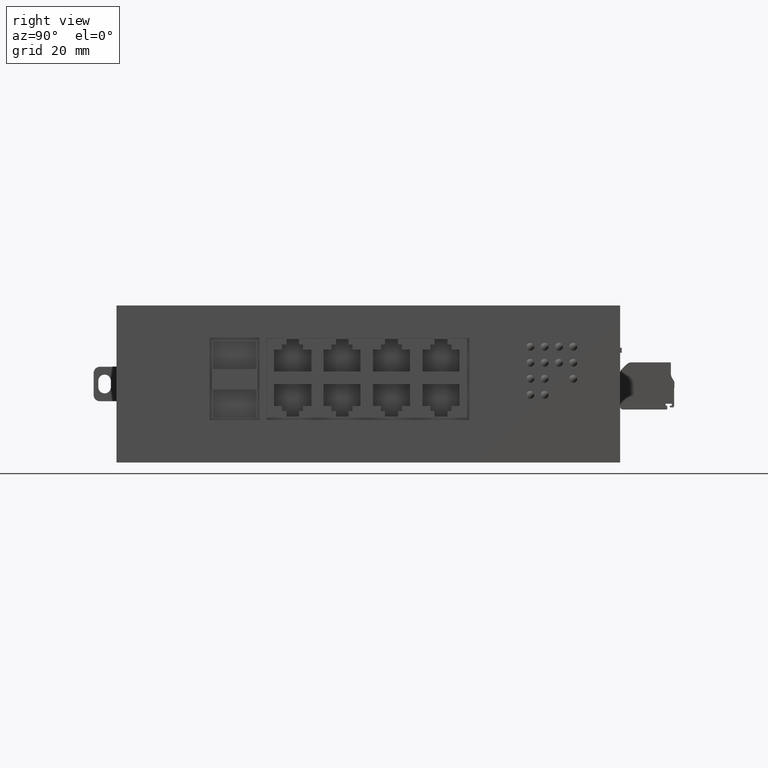
[diagram: clean part render]
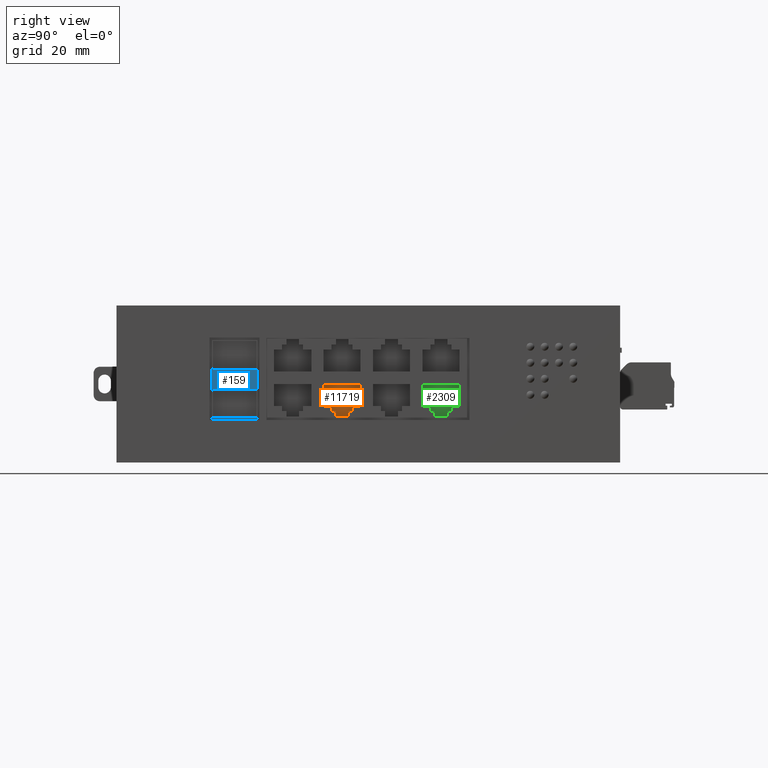
[diagram: same view with three faces highlighted in distinct colors, each labeled with its STEP entity id]
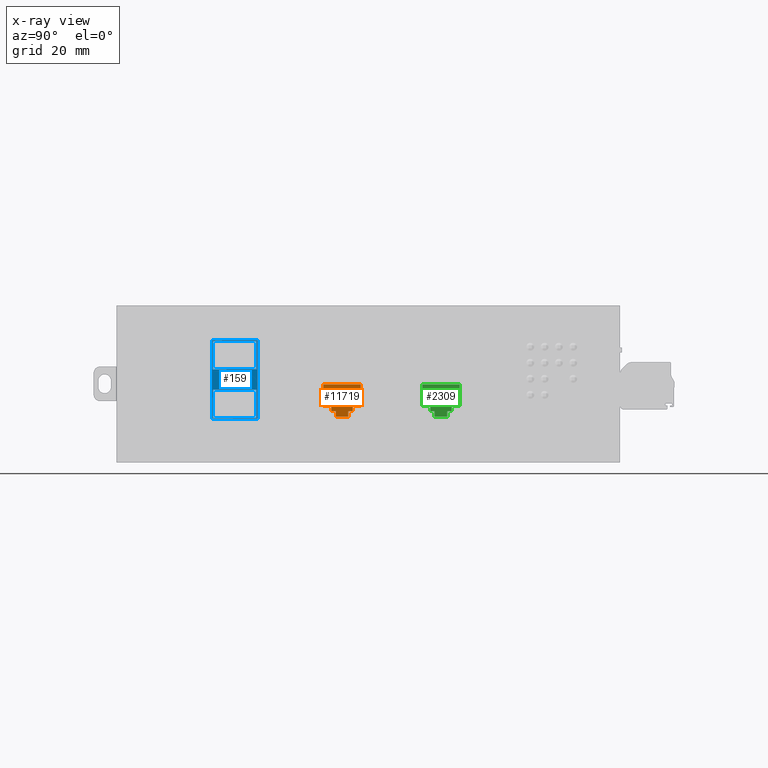
[diagram: x-ray of the same camera — body ghosted, the three highlighted faces saturated]
A machine part, right view with three faces highlighted in distinct colors.
The next image is the same camera in x-ray (body ghosted, the three faces saturated) — at least one of them is partly hidden behind the body in this view.
Their STEP definitions:

[orange] entity #11719 — the highlighted planar face has unit normal (1, -0, 0).
#3 = LINE ( 'NONE', #13454, #13130 ) ;
#177 = VECTOR ( 'NONE', #10292, 39.37007874015748143 ) ;
#627 = CARTESIAN_POINT ( 'NONE',  ( 4.389763779527559251, 2.958661417322835163, 0.6417322834645670104 ) ) ;
#955 = DIRECTION ( 'NONE',  ( 0.000000000000000000, -0.000000000000000000, -1.000000000000000000 ) ) ;
#1000 = EDGE_CURVE ( 'NONE', #15142, #17230, #3586, .T. ) ;
#1449 = ORIENTED_EDGE ( 'NONE', *, *, #8476, .T. ) ;
#1545 = DIRECTION ( 'NONE',  ( 0.000000000000000000, -0.000000000000000000, -1.000000000000000000 ) ) ;
#1546 = VECTOR ( 'NONE', #2316, 39.37007874015748143 ) ;
#1899 = VERTEX_POINT ( 'NONE', #10807 ) ;
#2061 = FACE_OUTER_BOUND ( 'NONE', #6903, .T. ) ;
#2189 = LINE ( 'NONE', #5001, #6011 ) ;
#2316 = DIRECTION ( 'NONE',  ( 0.000000000000000000, -0.000000000000000000, 1.000000000000000000 ) ) ;
#2398 = DIRECTION ( 'NONE',  ( 0.000000000000000000, 1.000000000000000000, 0.000000000000000000 ) ) ;
#2411 = CARTESIAN_POINT ( 'NONE',  ( 4.389763779527559251, 2.690944881889763440, 0.000000000000000000 ) ) ;
#2652 = EDGE_CURVE ( 'NONE', #8412, #7326, #9696, .T. ) ;
#2683 = CARTESIAN_POINT ( 'NONE',  ( 4.389763779527559251, 3.059055118110236560, 0.9803149606299211838 ) ) ;
#2730 = ORIENTED_EDGE ( 'NONE', *, *, #4099, .T. ) ;
#2782 = ORIENTED_EDGE ( 'NONE', *, *, #2652, .T. ) ;
#3445 = CARTESIAN_POINT ( 'NONE',  ( 4.389763779527559251, 2.958661417322835163, 0.000000000000000000 ) ) ;
#3586 = LINE ( 'NONE', #15650, #15375 ) ;
#3661 = EDGE_CURVE ( 'NONE', #13352, #4835, #6054, .T. ) ;
#3706 = CARTESIAN_POINT ( 'NONE',  ( 4.389763779527559251, 2.590551181102362044, 0.7066929133858268486 ) ) ;
#3750 = EDGE_CURVE ( 'NONE', #5153, #13352, #2189, .T. ) ;
#3893 = VECTOR ( 'NONE', #2398, 39.37007874015748143 ) ;
#4005 = DIRECTION ( 'NONE',  ( 0.000000000000000000, -1.000000000000000000, -0.000000000000000000 ) ) ;
#4099 = EDGE_CURVE ( 'NONE', #9735, #1899, #12908, .T. ) ;
#4153 = EDGE_CURVE ( 'NONE', #9510, #14747, #14307, .T. ) ;
#4748 = AXIS2_PLACEMENT_3D ( 'NONE', #6192, #4874, #12830 ) ;
#4835 = VERTEX_POINT ( 'NONE', #627 ) ;
#4874 = DIRECTION ( 'NONE',  ( 1.000000000000000000, -0.000000000000000000, 0.000000000000000000 ) ) ;
#4953 = CARTESIAN_POINT ( 'NONE',  ( 4.389763779527559251, 2.590551181102362044, 0.7066929133858268486 ) ) ;
#4957 = ORIENTED_EDGE ( 'NONE', *, *, #3750, .T. ) ;
#5001 = CARTESIAN_POINT ( 'NONE',  ( 4.389763779527559251, 2.903543307086613900, 0.5728346456692913202 ) ) ;
#5014 = VECTOR ( 'NONE', #1545, 39.37007874015748143 ) ;
#5027 = LINE ( 'NONE', #10622, #14728 ) ;
#5153 = VERTEX_POINT ( 'NONE', #7345 ) ;
#5216 = VECTOR ( 'NONE', #8787, 39.37007874015748143 ) ;
#5686 = CARTESIAN_POINT ( 'NONE',  ( 4.389763779527559251, 2.903543307086613900, 0.6417322834645670104 ) ) ;
#6011 = VECTOR ( 'NONE', #7614, 39.37007874015748143 ) ;
#6054 = LINE ( 'NONE', #12866, #11582 ) ;
#6192 = CARTESIAN_POINT ( 'NONE',  ( 4.389763779527559251, 0.6200787401574803237, 0.000000000000000000 ) ) ;
#6271 = EDGE_CURVE ( 'NONE', #4835, #12513, #15425, .T. ) ;
#6319 = CARTESIAN_POINT ( 'NONE',  ( 4.389763779527559251, 0.6200787401574803237, 0.6417322834645670104 ) ) ;
#6903 = EDGE_LOOP ( 'NONE', ( #16383, #7840, #15935, #1449, #2782, #11864, #2730, #8103, #13425, #7921, #4957, #8321 ) ) ;
#7326 = VERTEX_POINT ( 'NONE', #4953 ) ;
#7345 = CARTESIAN_POINT ( 'NONE',  ( 4.389763779527559251, 2.903543307086613900, 0.5728346456692913202 ) ) ;
#7614 = DIRECTION ( 'NONE',  ( 0.000000000000000000, -0.000000000000000000, 1.000000000000000000 ) ) ;
#7840 = ORIENTED_EDGE ( 'NONE', *, *, #10424, .T. ) ;
#7921 = ORIENTED_EDGE ( 'NONE', *, *, #12004, .T. ) ;
#8103 = ORIENTED_EDGE ( 'NONE', *, *, #12676, .T. ) ;
#8321 = ORIENTED_EDGE ( 'NONE', *, *, #3661, .T. ) ;
#8412 = VERTEX_POINT ( 'NONE', #13187 ) ;
#8476 = EDGE_CURVE ( 'NONE', #14747, #8412, #10658, .T. ) ;
#8787 = DIRECTION ( 'NONE',  ( -0.000000000000000000, -0.000000000000000000, 1.000000000000000000 ) ) ;
#8956 = DIRECTION ( 'NONE',  ( 0.000000000000000000, 1.000000000000000000, 0.000000000000000000 ) ) ;
#9510 = VERTEX_POINT ( 'NONE', #12778 ) ;
#9696 = LINE ( 'NONE', #16069, #5014 ) ;
#9735 = VERTEX_POINT ( 'NONE', #12252 ) ;
#10292 = DIRECTION ( 'NONE',  ( 0.000000000000000000, 0.000000000000000000, -1.000000000000000000 ) ) ;
#10296 = PLANE ( 'NONE',  #4748 ) ;
#10424 = EDGE_CURVE ( 'NONE', #12513, #9510, #5027, .T. ) ;
#10622 = CARTESIAN_POINT ( 'NONE',  ( 4.389763779527559251, 2.958661417322835163, 0.7066929133858268486 ) ) ;
#10658 = LINE ( 'NONE', #17031, #11866 ) ;
#10807 = CARTESIAN_POINT ( 'NONE',  ( 4.389763779527559251, 2.690944881889763440, 0.6417322834645670104 ) ) ;
#11184 = VECTOR ( 'NONE', #11815, 39.37007874015748143 ) ;
#11474 = DIRECTION ( 'NONE',  ( 0.000000000000000000, 1.000000000000000000, 0.000000000000000000 ) ) ;
#11582 = VECTOR ( 'NONE', #11474, 39.37007874015748143 ) ;
#11673 = LINE ( 'NONE', #3706, #3893 ) ;
#11719 = ADVANCED_FACE ( 'NONE', ( #2061 ), #10296, .T. ) ;
#11815 = DIRECTION ( 'NONE',  ( 0.000000000000000000, 1.000000000000000000, 0.000000000000000000 ) ) ;
#11864 = ORIENTED_EDGE ( 'NONE', *, *, #14870, .T. ) ;
#11866 = VECTOR ( 'NONE', #4005, 39.37007874015748143 ) ;
#12004 = EDGE_CURVE ( 'NONE', #17230, #5153, #3, .T. ) ;
#12182 = CARTESIAN_POINT ( 'NONE',  ( 4.389763779527559251, 2.746062992125984703, 0.5728346456692913202 ) ) ;
#12252 = CARTESIAN_POINT ( 'NONE',  ( 4.389763779527559251, 2.690944881889763440, 0.7066929133858268486 ) ) ;
#12513 = VERTEX_POINT ( 'NONE', #15401 ) ;
#12676 = EDGE_CURVE ( 'NONE', #1899, #15142, #15576, .T. ) ;
#12778 = CARTESIAN_POINT ( 'NONE',  ( 4.389763779527559251, 3.059055118110236560, 0.7066929133858268486 ) ) ;
#12830 = DIRECTION ( 'NONE',  ( 0.000000000000000000, 0.000000000000000000, -1.000000000000000000 ) ) ;
#12866 = CARTESIAN_POINT ( 'NONE',  ( 4.389763779527559251, 0.6200787401574803237, 0.6417322834645670104 ) ) ;
#12908 = LINE ( 'NONE', #2411, #177 ) ;
#12990 = CARTESIAN_POINT ( 'NONE',  ( 4.389763779527559251, 3.059055118110236560, 0.7066929133858268486 ) ) ;
#13130 = VECTOR ( 'NONE', #14776, 39.37007874015748143 ) ;
#13187 = CARTESIAN_POINT ( 'NONE',  ( 4.389763779527559251, 2.590551181102362044, 0.9803149606299211838 ) ) ;
#13352 = VERTEX_POINT ( 'NONE', #5686 ) ;
#13425 = ORIENTED_EDGE ( 'NONE', *, *, #1000, .T. ) ;
#13454 = CARTESIAN_POINT ( 'NONE',  ( 4.389763779527559251, 2.746062992125984703, 0.5728346456692913202 ) ) ;
#14307 = LINE ( 'NONE', #12990, #1546 ) ;
#14728 = VECTOR ( 'NONE', #8956, 39.37007874015748143 ) ;
#14747 = VERTEX_POINT ( 'NONE', #2683 ) ;
#14776 = DIRECTION ( 'NONE',  ( 0.000000000000000000, 1.000000000000000000, 0.000000000000000000 ) ) ;
#14870 = EDGE_CURVE ( 'NONE', #7326, #9735, #11673, .T. ) ;
#15142 = VERTEX_POINT ( 'NONE', #16216 ) ;
#15375 = VECTOR ( 'NONE', #955, 39.37007874015748143 ) ;
#15401 = CARTESIAN_POINT ( 'NONE',  ( 4.389763779527559251, 2.958661417322835163, 0.7066929133858268486 ) ) ;
#15425 = LINE ( 'NONE', #3445, #5216 ) ;
#15576 = LINE ( 'NONE', #6319, #11184 ) ;
#15650 = CARTESIAN_POINT ( 'NONE',  ( 4.389763779527559251, 2.746062992125984703, 0.6417322834645670104 ) ) ;
#15935 = ORIENTED_EDGE ( 'NONE', *, *, #4153, .T. ) ;
#16069 = CARTESIAN_POINT ( 'NONE',  ( 4.389763779527559251, 2.590551181102362044, 0.9803149606299211838 ) ) ;
#16216 = CARTESIAN_POINT ( 'NONE',  ( 4.389763779527559251, 2.746062992125984703, 0.6417322834645670104 ) ) ;
#16383 = ORIENTED_EDGE ( 'NONE', *, *, #6271, .T. ) ;
#17031 = CARTESIAN_POINT ( 'NONE',  ( 4.389763779527559251, 3.059055118110236560, 0.9803149606299211838 ) ) ;
#17230 = VERTEX_POINT ( 'NONE', #12182 ) ;

[blue] entity #159 — the highlighted planar face has unit normal (1, -0, 0).
#40 = EDGE_LOOP ( 'NONE', ( #7581, #8107, #13490, #106 ) ) ;
#106 = ORIENTED_EDGE ( 'NONE', *, *, #16327, .T. ) ;
#159 = ADVANCED_FACE ( 'NONE', ( #1675, #12428, #7026 ), #5796, .T. ) ;
#301 = EDGE_CURVE ( 'NONE', #7461, #7389, #14170, .T. ) ;
#450 = CARTESIAN_POINT ( 'NONE',  ( 4.944881889763779625, 0.000000000000000000, 0.000000000000000000 ) ) ;
#845 = DIRECTION ( 'NONE',  ( -0.000000000000000000, -0.000000000000000000, 1.000000000000000000 ) ) ;
#985 = VECTOR ( 'NONE', #13186, 39.37007874015748143 ) ;
#1109 = DIRECTION ( 'NONE',  ( -0.000000000000000000, -1.000000000000000000, -0.000000000000000000 ) ) ;
#1584 = ORIENTED_EDGE ( 'NONE', *, *, #13491, .T. ) ;
#1675 = FACE_OUTER_BOUND ( 'NONE', #9154, .T. ) ;
#1855 = VECTOR ( 'NONE', #13602, 39.37007874015748143 ) ;
#2183 = CARTESIAN_POINT ( 'NONE',  ( 4.944881889763779625, 1.755905511811023612, 0.000000000000000000 ) ) ;
#2267 = EDGE_CURVE ( 'NONE', #2366, #2853, #9621, .T. ) ;
#2366 = VERTEX_POINT ( 'NONE', #16348 ) ;
#2459 = ORIENTED_EDGE ( 'NONE', *, *, #13983, .T. ) ;
#2550 = VECTOR ( 'NONE', #7526, 39.37007874015748143 ) ;
#2608 = CARTESIAN_POINT ( 'NONE',  ( 4.944881889763779625, 1.194881889763779625, 0.5472440944881890035 ) ) ;
#2737 = VERTEX_POINT ( 'NONE', #5416 ) ;
#2853 = VERTEX_POINT ( 'NONE', #3202 ) ;
#2911 = EDGE_CURVE ( 'NONE', #7209, #9045, #6442, .T. ) ;
#3202 = CARTESIAN_POINT ( 'NONE',  ( 4.944881889763779625, 1.194881889763779625, 0.5472440944881891145 ) ) ;
#3269 = CARTESIAN_POINT ( 'NONE',  ( 4.944881889763779625, 0.000000000000000000, 1.521653543307086576 ) ) ;
#3428 = VECTOR ( 'NONE', #8216, 39.37007874015748143 ) ;
#4044 = CARTESIAN_POINT ( 'NONE',  ( 4.944881889763779625, 1.765748031496063186, 0.5472440944881891145 ) ) ;
#4149 = EDGE_LOOP ( 'NONE', ( #16064, #2459, #5670, #1584 ) ) ;
#4330 = CARTESIAN_POINT ( 'NONE',  ( 4.944881889763779625, 1.765748031496063186, 1.531496062992125928 ) ) ;
#4502 = LINE ( 'NONE', #3269, #11849 ) ;
#5058 = LINE ( 'NONE', #6112, #6075 ) ;
#5243 = LINE ( 'NONE', #7854, #985 ) ;
#5416 = CARTESIAN_POINT ( 'NONE',  ( 4.944881889763779625, 1.765748031496063186, 1.531496062992125928 ) ) ;
#5448 = EDGE_CURVE ( 'NONE', #2853, #9419, #14683, .T. ) ;
#5670 = ORIENTED_EDGE ( 'NONE', *, *, #15364, .T. ) ;
#5731 = CARTESIAN_POINT ( 'NONE',  ( 4.944881889763779625, 1.204724409448818978, 0.9114173228346457156 ) ) ;
#5796 = PLANE ( 'NONE',  #8422 ) ;
#6075 = VECTOR ( 'NONE', #1109, 39.37007874015748143 ) ;
#6112 = CARTESIAN_POINT ( 'NONE',  ( 4.944881889763779625, 0.000000000000000000, 0.5570866141732283561 ) ) ;
#6318 = ORIENTED_EDGE ( 'NONE', *, *, #7363, .T. ) ;
#6442 = LINE ( 'NONE', #10448, #12268 ) ;
#6607 = CARTESIAN_POINT ( 'NONE',  ( 4.944881889763779625, 1.755905511811023612, 1.521653543307086576 ) ) ;
#6768 = CARTESIAN_POINT ( 'NONE',  ( 4.944881889763779625, 1.204724409448818978, 0.000000000000000000 ) ) ;
#6845 = DIRECTION ( 'NONE',  ( -0.000000000000000000, -0.000000000000000000, 1.000000000000000000 ) ) ;
#6970 = LINE ( 'NONE', #4330, #1855 ) ;
#7026 = FACE_BOUND ( 'NONE', #40, .T. ) ;
#7029 = VERTEX_POINT ( 'NONE', #13259 ) ;
#7209 = VERTEX_POINT ( 'NONE', #11160 ) ;
#7363 = EDGE_CURVE ( 'NONE', #9419, #2737, #10282, .T. ) ;
#7389 = VERTEX_POINT ( 'NONE', #15428 ) ;
#7461 = VERTEX_POINT ( 'NONE', #6607 ) ;
#7526 = DIRECTION ( 'NONE',  ( 0.000000000000000000, 0.000000000000000000, -1.000000000000000000 ) ) ;
#7581 = ORIENTED_EDGE ( 'NONE', *, *, #9323, .T. ) ;
#7854 = CARTESIAN_POINT ( 'NONE',  ( 4.944881889763779625, 0.000000000000000000, 1.167322834645669216 ) ) ;
#8094 = ORIENTED_EDGE ( 'NONE', *, *, #5448, .T. ) ;
#8107 = ORIENTED_EDGE ( 'NONE', *, *, #16762, .T. ) ;
#8216 = DIRECTION ( 'NONE',  ( -0.000000000000000000, 0.000000000000000000, -1.000000000000000000 ) ) ;
#8274 = VECTOR ( 'NONE', #15605, 39.37007874015748143 ) ;
#8422 = AXIS2_PLACEMENT_3D ( 'NONE', #450, #11119, #16453 ) ;
#9045 = VERTEX_POINT ( 'NONE', #5731 ) ;
#9154 = EDGE_LOOP ( 'NONE', ( #16164, #8094, #6318, #11596 ) ) ;
#9323 = EDGE_CURVE ( 'NONE', #7029, #16935, #10952, .T. ) ;
#9419 = VERTEX_POINT ( 'NONE', #4044 ) ;
#9621 = LINE ( 'NONE', #10934, #3428 ) ;
#10147 = EDGE_CURVE ( 'NONE', #2737, #2366, #6970, .T. ) ;
#10188 = VERTEX_POINT ( 'NONE', #16304 ) ;
#10191 = CARTESIAN_POINT ( 'NONE',  ( 4.944881889763779625, 1.765748031496063186, 0.5472440944881890035 ) ) ;
#10282 = LINE ( 'NONE', #10191, #8274 ) ;
#10448 = CARTESIAN_POINT ( 'NONE',  ( 4.944881889763779625, 1.204724409448818978, 0.000000000000000000 ) ) ;
#10538 = LINE ( 'NONE', #13070, #15248 ) ;
#10839 = CARTESIAN_POINT ( 'NONE',  ( 4.944881889763779625, 1.755905511811023612, 0.5570866141732283561 ) ) ;
#10934 = CARTESIAN_POINT ( 'NONE',  ( 4.944881889763779625, 1.194881889763779625, 1.531496062992125928 ) ) ;
#10952 = LINE ( 'NONE', #6768, #12984 ) ;
#11119 = DIRECTION ( 'NONE',  ( 1.000000000000000000, -0.000000000000000000, 0.000000000000000000 ) ) ;
#11160 = CARTESIAN_POINT ( 'NONE',  ( 4.944881889763779625, 1.204724409448818978, 0.5570866141732284671 ) ) ;
#11414 = VERTEX_POINT ( 'NONE', #10839 ) ;
#11435 = VECTOR ( 'NONE', #11882, 39.37007874015748143 ) ;
#11596 = ORIENTED_EDGE ( 'NONE', *, *, #10147, .T. ) ;
#11849 = VECTOR ( 'NONE', #13933, 39.37007874015748143 ) ;
#11882 = DIRECTION ( 'NONE',  ( -0.000000000000000000, 1.000000000000000000, 1.196361017915039979E-16 ) ) ;
#12251 = VECTOR ( 'NONE', #13313, 39.37007874015748143 ) ;
#12268 = VECTOR ( 'NONE', #845, 39.37007874015748143 ) ;
#12428 = FACE_BOUND ( 'NONE', #4149, .T. ) ;
#12984 = VECTOR ( 'NONE', #6845, 39.37007874015748143 ) ;
#13070 = CARTESIAN_POINT ( 'NONE',  ( 4.944881889763779625, 0.000000000000000000, 0.9114173228346457156 ) ) ;
#13186 = DIRECTION ( 'NONE',  ( -0.000000000000000000, -1.000000000000000000, -0.000000000000000000 ) ) ;
#13259 = CARTESIAN_POINT ( 'NONE',  ( 4.944881889763779625, 1.204724409448818978, 1.167322834645669216 ) ) ;
#13313 = DIRECTION ( 'NONE',  ( 0.000000000000000000, 0.000000000000000000, -1.000000000000000000 ) ) ;
#13490 = ORIENTED_EDGE ( 'NONE', *, *, #301, .T. ) ;
#13491 = EDGE_CURVE ( 'NONE', #11414, #7209, #5058, .T. ) ;
#13602 = DIRECTION ( 'NONE',  ( -0.000000000000000000, -1.000000000000000000, -0.000000000000000000 ) ) ;
#13933 = DIRECTION ( 'NONE',  ( 0.000000000000000000, 1.000000000000000000, 0.000000000000000000 ) ) ;
#13983 = EDGE_CURVE ( 'NONE', #9045, #10188, #10538, .T. ) ;
#14170 = LINE ( 'NONE', #2183, #2550 ) ;
#14683 = LINE ( 'NONE', #2608, #11435 ) ;
#15248 = VECTOR ( 'NONE', #15867, 39.37007874015748143 ) ;
#15364 = EDGE_CURVE ( 'NONE', #10188, #11414, #15938, .T. ) ;
#15428 = CARTESIAN_POINT ( 'NONE',  ( 4.944881889763779625, 1.755905511811023612, 1.167322834645669216 ) ) ;
#15605 = DIRECTION ( 'NONE',  ( -0.000000000000000000, 0.000000000000000000, 1.000000000000000000 ) ) ;
#15746 = CARTESIAN_POINT ( 'NONE',  ( 4.944881889763779625, 1.755905511811023612, 0.000000000000000000 ) ) ;
#15867 = DIRECTION ( 'NONE',  ( 0.000000000000000000, 1.000000000000000000, 0.000000000000000000 ) ) ;
#15938 = LINE ( 'NONE', #15746, #12251 ) ;
#16064 = ORIENTED_EDGE ( 'NONE', *, *, #2911, .T. ) ;
#16164 = ORIENTED_EDGE ( 'NONE', *, *, #2267, .T. ) ;
#16304 = CARTESIAN_POINT ( 'NONE',  ( 4.944881889763779625, 1.755905511811023612, 0.9114173228346457156 ) ) ;
#16327 = EDGE_CURVE ( 'NONE', #7389, #7029, #5243, .T. ) ;
#16348 = CARTESIAN_POINT ( 'NONE',  ( 4.944881889763779625, 1.194881889763779625, 1.531496062992125928 ) ) ;
#16453 = DIRECTION ( 'NONE',  ( 0.000000000000000000, 0.000000000000000000, -1.000000000000000000 ) ) ;
#16735 = CARTESIAN_POINT ( 'NONE',  ( 4.944881889763779625, 1.204724409448818978, 1.521653543307086576 ) ) ;
#16762 = EDGE_CURVE ( 'NONE', #16935, #7461, #4502, .T. ) ;
#16935 = VERTEX_POINT ( 'NONE', #16735 ) ;

[green] entity #2309 — the highlighted planar face has unit normal (1, -0, 0).
#258 = EDGE_CURVE ( 'NONE', #9487, #11697, #8669, .T. ) ;
#358 = CARTESIAN_POINT ( 'NONE',  ( 4.389763779527559251, 1.860236220472440971, 0.000000000000000000 ) ) ;
#654 = DIRECTION ( 'NONE',  ( 0.000000000000000000, 1.000000000000000000, 0.000000000000000000 ) ) ;
#719 = EDGE_CURVE ( 'NONE', #11552, #9277, #9555, .T. ) ;
#1368 = VECTOR ( 'NONE', #16471, 39.37007874015748143 ) ;
#1477 = DIRECTION ( 'NONE',  ( 0.000000000000000000, 0.000000000000000000, -1.000000000000000000 ) ) ;
#1872 = VECTOR ( 'NONE', #12430, 39.37007874015748143 ) ;
#2221 = EDGE_CURVE ( 'NONE', #14864, #5556, #9191, .T. ) ;
#2275 = VERTEX_POINT ( 'NONE', #5783 ) ;
#2309 = ADVANCED_FACE ( 'NONE', ( #2713 ), #2878, .T. ) ;
#2713 = FACE_OUTER_BOUND ( 'NONE', #16286, .T. ) ;
#2878 = PLANE ( 'NONE',  #16835 ) ;
#2921 = VECTOR ( 'NONE', #11786, 39.37007874015748143 ) ;
#3233 = ORIENTED_EDGE ( 'NONE', *, *, #8497, .T. ) ;
#4350 = VECTOR ( 'NONE', #14580, 39.37007874015748143 ) ;
#4651 = VECTOR ( 'NONE', #654, 39.37007874015748143 ) ;
#4841 = DIRECTION ( 'NONE',  ( 0.000000000000000000, 1.000000000000000000, 0.000000000000000000 ) ) ;
#4884 = CARTESIAN_POINT ( 'NONE',  ( 4.389763779527559251, 3.986220472440945350, 0.6417322834645670104 ) ) ;
#5062 = DIRECTION ( 'NONE',  ( 0.000000000000000000, -0.000000000000000000, -1.000000000000000000 ) ) ;
#5094 = DIRECTION ( 'NONE',  ( 0.000000000000000000, 1.000000000000000000, 0.000000000000000000 ) ) ;
#5517 = CARTESIAN_POINT ( 'NONE',  ( 4.389763779527559251, 4.198818897637795367, 0.7066929133858268486 ) ) ;
#5556 = VERTEX_POINT ( 'NONE', #5517 ) ;
#5577 = ORIENTED_EDGE ( 'NONE', *, *, #14529, .T. ) ;
#5783 = CARTESIAN_POINT ( 'NONE',  ( 4.389763779527559251, 3.986220472440945350, 0.5728346456692913202 ) ) ;
#5817 = ORIENTED_EDGE ( 'NONE', *, *, #7868, .T. ) ;
#5865 = EDGE_CURVE ( 'NONE', #13875, #11552, #13002, .T. ) ;
#6345 = VERTEX_POINT ( 'NONE', #9551 ) ;
#6675 = CARTESIAN_POINT ( 'NONE',  ( 4.389763779527559251, 3.830708661417322691, 0.9803149606299211838 ) ) ;
#6918 = CARTESIAN_POINT ( 'NONE',  ( 4.389763779527559251, 3.830708661417322691, 0.7066929133858268486 ) ) ;
#6961 = CARTESIAN_POINT ( 'NONE',  ( 4.389763779527559251, 3.931102362204724088, 0.000000000000000000 ) ) ;
#7028 = CARTESIAN_POINT ( 'NONE',  ( 4.389763779527559251, 3.931102362204724088, 0.6417322834645670104 ) ) ;
#7152 = EDGE_CURVE ( 'NONE', #2275, #9487, #15263, .T. ) ;
#7351 = CARTESIAN_POINT ( 'NONE',  ( 4.389763779527559251, 4.143700787401574992, 0.5728346456692913202 ) ) ;
#7392 = CARTESIAN_POINT ( 'NONE',  ( 4.389763779527559251, 4.299212598425197207, 0.7066929133858268486 ) ) ;
#7506 = VECTOR ( 'NONE', #14692, 39.37007874015748143 ) ;
#7580 = CARTESIAN_POINT ( 'NONE',  ( 4.389763779527559251, 4.143700787401574992, 0.6417322834645670104 ) ) ;
#7611 = ORIENTED_EDGE ( 'NONE', *, *, #15247, .T. ) ;
#7725 = CARTESIAN_POINT ( 'NONE',  ( 4.389763779527559251, 3.830708661417322691, 0.9803149606299211838 ) ) ;
#7733 = VECTOR ( 'NONE', #5094, 39.37007874015748143 ) ;
#7765 = CARTESIAN_POINT ( 'NONE',  ( 4.389763779527559251, 1.860236220472440971, 0.6417322834645670104 ) ) ;
#7777 = EDGE_CURVE ( 'NONE', #9277, #10716, #10514, .T. ) ;
#7868 = EDGE_CURVE ( 'NONE', #16034, #6345, #14542, .T. ) ;
#8387 = CARTESIAN_POINT ( 'NONE',  ( 4.389763779527559251, 4.299212598425197207, 0.9803149606299211838 ) ) ;
#8450 = ORIENTED_EDGE ( 'NONE', *, *, #7777, .T. ) ;
#8497 = EDGE_CURVE ( 'NONE', #11697, #14864, #14415, .T. ) ;
#8498 = CARTESIAN_POINT ( 'NONE',  ( 4.389763779527559251, 3.830708661417322691, 0.7066929133858268486 ) ) ;
#8669 = LINE ( 'NONE', #7351, #9261 ) ;
#8676 = CARTESIAN_POINT ( 'NONE',  ( 4.389763779527559251, 4.143700787401574992, 0.5728346456692913202 ) ) ;
#8775 = DIRECTION ( 'NONE',  ( -0.000000000000000000, -0.000000000000000000, 1.000000000000000000 ) ) ;
#8938 = ORIENTED_EDGE ( 'NONE', *, *, #7152, .T. ) ;
#9191 = LINE ( 'NONE', #15414, #10977 ) ;
#9261 = VECTOR ( 'NONE', #15207, 39.37007874015748143 ) ;
#9277 = VERTEX_POINT ( 'NONE', #7725 ) ;
#9487 = VERTEX_POINT ( 'NONE', #8676 ) ;
#9539 = LINE ( 'NONE', #6918, #7506 ) ;
#9551 = CARTESIAN_POINT ( 'NONE',  ( 4.389763779527559251, 3.986220472440945350, 0.6417322834645670104 ) ) ;
#9555 = LINE ( 'NONE', #10947, #1872 ) ;
#10514 = LINE ( 'NONE', #6675, #14717 ) ;
#10716 = VERTEX_POINT ( 'NONE', #8498 ) ;
#10947 = CARTESIAN_POINT ( 'NONE',  ( 4.389763779527559251, 4.299212598425197207, 0.9803149606299211838 ) ) ;
#10977 = VECTOR ( 'NONE', #8775, 39.37007874015748143 ) ;
#11552 = VERTEX_POINT ( 'NONE', #8387 ) ;
#11697 = VERTEX_POINT ( 'NONE', #7580 ) ;
#11776 = CARTESIAN_POINT ( 'NONE',  ( 4.389763779527559251, 4.299212598425197207, 0.7066929133858268486 ) ) ;
#11786 = DIRECTION ( 'NONE',  ( 0.000000000000000000, 1.000000000000000000, 0.000000000000000000 ) ) ;
#12085 = ORIENTED_EDGE ( 'NONE', *, *, #15139, .T. ) ;
#12216 = VERTEX_POINT ( 'NONE', #16682 ) ;
#12430 = DIRECTION ( 'NONE',  ( 0.000000000000000000, -1.000000000000000000, -0.000000000000000000 ) ) ;
#13002 = LINE ( 'NONE', #11776, #4350 ) ;
#13509 = ORIENTED_EDGE ( 'NONE', *, *, #258, .T. ) ;
#13875 = VERTEX_POINT ( 'NONE', #7392 ) ;
#14034 = CARTESIAN_POINT ( 'NONE',  ( 4.389763779527559251, 4.198818897637795367, 0.6417322834645670104 ) ) ;
#14123 = ORIENTED_EDGE ( 'NONE', *, *, #719, .T. ) ;
#14346 = EDGE_CURVE ( 'NONE', #10716, #12216, #9539, .T. ) ;
#14415 = LINE ( 'NONE', #7765, #2921 ) ;
#14529 = EDGE_CURVE ( 'NONE', #6345, #2275, #17027, .T. ) ;
#14542 = LINE ( 'NONE', #17061, #7733 ) ;
#14580 = DIRECTION ( 'NONE',  ( 0.000000000000000000, -0.000000000000000000, 1.000000000000000000 ) ) ;
#14692 = DIRECTION ( 'NONE',  ( 0.000000000000000000, 1.000000000000000000, 0.000000000000000000 ) ) ;
#14712 = DIRECTION ( 'NONE',  ( 0.000000000000000000, -0.000000000000000000, -1.000000000000000000 ) ) ;
#14717 = VECTOR ( 'NONE', #14712, 39.37007874015748143 ) ;
#14864 = VERTEX_POINT ( 'NONE', #14034 ) ;
#14901 = LINE ( 'NONE', #6961, #1368 ) ;
#15139 = EDGE_CURVE ( 'NONE', #12216, #16034, #14901, .T. ) ;
#15207 = DIRECTION ( 'NONE',  ( 0.000000000000000000, -0.000000000000000000, 1.000000000000000000 ) ) ;
#15247 = EDGE_CURVE ( 'NONE', #5556, #13875, #15488, .T. ) ;
#15263 = LINE ( 'NONE', #16316, #4651 ) ;
#15402 = ORIENTED_EDGE ( 'NONE', *, *, #2221, .T. ) ;
#15414 = CARTESIAN_POINT ( 'NONE',  ( 4.389763779527559251, 4.198818897637795367, 0.000000000000000000 ) ) ;
#15488 = LINE ( 'NONE', #16886, #17256 ) ;
#15596 = VECTOR ( 'NONE', #5062, 39.37007874015748143 ) ;
#16034 = VERTEX_POINT ( 'NONE', #7028 ) ;
#16286 = EDGE_LOOP ( 'NONE', ( #15402, #7611, #16506, #14123, #8450, #16837, #12085, #5817, #5577, #8938, #13509, #3233 ) ) ;
#16316 = CARTESIAN_POINT ( 'NONE',  ( 4.389763779527559251, 3.986220472440945350, 0.5728346456692913202 ) ) ;
#16435 = DIRECTION ( 'NONE',  ( 1.000000000000000000, -0.000000000000000000, 0.000000000000000000 ) ) ;
#16471 = DIRECTION ( 'NONE',  ( 0.000000000000000000, 0.000000000000000000, -1.000000000000000000 ) ) ;
#16506 = ORIENTED_EDGE ( 'NONE', *, *, #5865, .T. ) ;
#16682 = CARTESIAN_POINT ( 'NONE',  ( 4.389763779527559251, 3.931102362204724088, 0.7066929133858268486 ) ) ;
#16835 = AXIS2_PLACEMENT_3D ( 'NONE', #358, #16435, #1477 ) ;
#16837 = ORIENTED_EDGE ( 'NONE', *, *, #14346, .T. ) ;
#16886 = CARTESIAN_POINT ( 'NONE',  ( 4.389763779527559251, 4.198818897637795367, 0.7066929133858268486 ) ) ;
#17027 = LINE ( 'NONE', #4884, #15596 ) ;
#17061 = CARTESIAN_POINT ( 'NONE',  ( 4.389763779527559251, 1.860236220472440971, 0.6417322834645670104 ) ) ;
#17256 = VECTOR ( 'NONE', #4841, 39.37007874015748143 ) ;